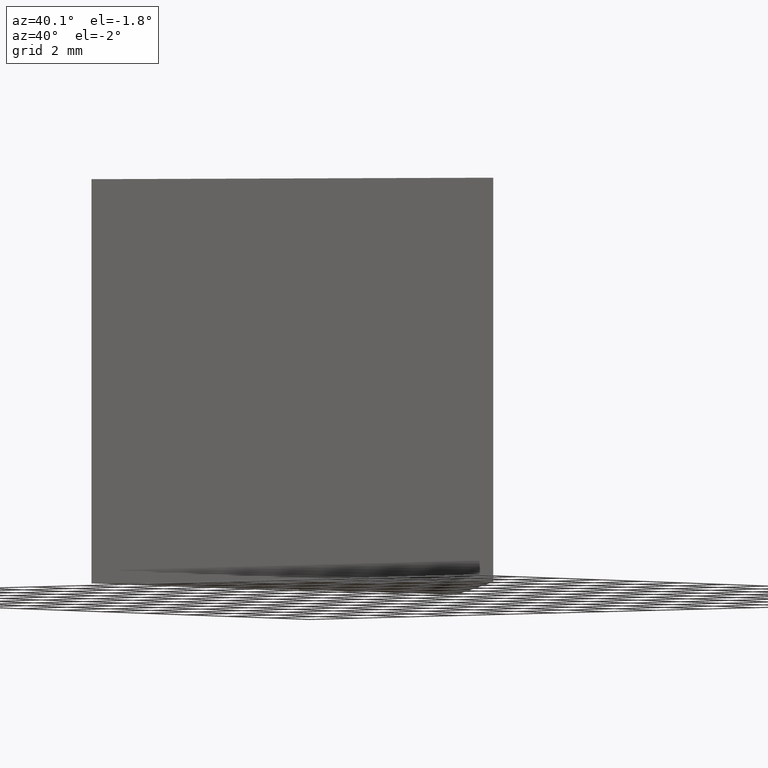
[diagram: clean part render]
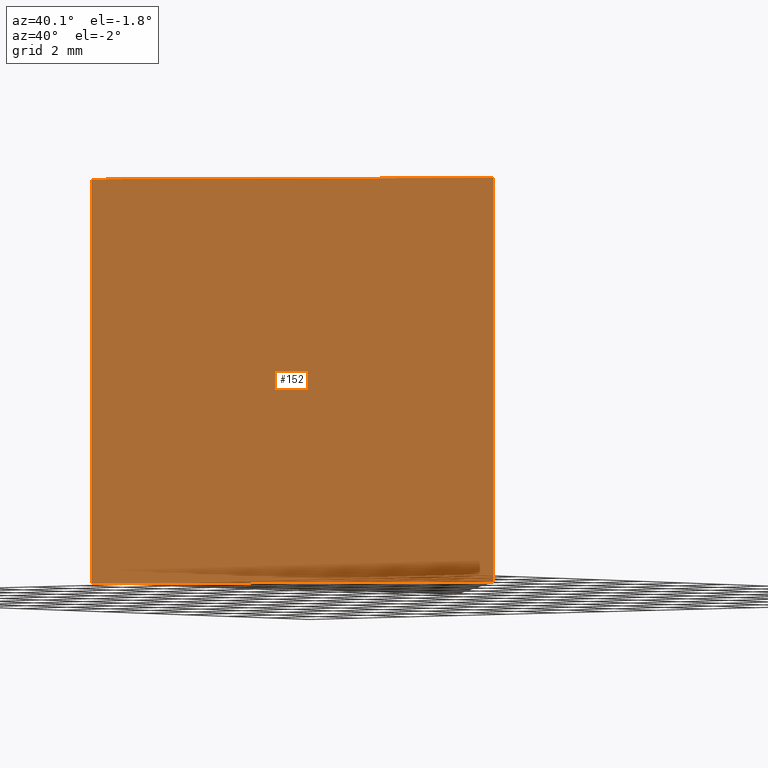
[diagram: same view with one face highlighted and labeled with its STEP entity id]
A machine part, auxiliary view. The second image highlights one B-rep face of the part: STEP entity #152.
In plain terms, the highlighted planar face has unit normal (-0.5514, 0.8342, 0).
Its self-contained STEP definition (entity closure, byte-faithful):
#2 = CARTESIAN_POINT ( 'NONE',  ( 11.11417082101136700, 7.739990180066555100, 0.0000000000000000000 ) ) ;
#6 = ORIENTED_EDGE ( 'NONE', *, *, #133, .F. ) ;
#7 = ORIENTED_EDGE ( 'NONE', *, *, #155, .T. ) ;
#15 = CARTESIAN_POINT ( 'NONE',  ( 11.11417082101136700, 7.739990180066555100, 12.50000000000000000 ) ) ;
#18 = CARTESIAN_POINT ( 'NONE',  ( 11.11417082101136700, 7.739990180066555100, 12.50000000000000000 ) ) ;
#22 = AXIS2_PLACEMENT_3D ( 'NONE', #15, #91, #153 ) ;
#30 = LINE ( 'NONE', #142, #132 ) ;
#35 = VERTEX_POINT ( 'NONE', #120 ) ;
#39 = CARTESIAN_POINT ( 'NONE',  ( 0.6861709744360347000, 0.8474711050240408800, 12.50000000000000000 ) ) ;
#43 = VECTOR ( 'NONE', #54, 1000.000000000000100 ) ;
#45 = CARTESIAN_POINT ( 'NONE',  ( 11.11417082101136700, 7.739990180066555100, 12.50000000000000000 ) ) ;
#46 = VERTEX_POINT ( 'NONE', #66 ) ;
#54 = DIRECTION ( 'NONE',  ( 0.8342399877260263700, 0.5514015260034009800, -0.0000000000000000000 ) ) ;
#62 = ORIENTED_EDGE ( 'NONE', *, *, #96, .T. ) ;
#66 = CARTESIAN_POINT ( 'NONE',  ( 11.11417082101136700, 7.739990180066555100, 0.0000000000000000000 ) ) ;
#71 = FACE_OUTER_BOUND ( 'NONE', #83, .T. ) ;
#73 = DIRECTION ( 'NONE',  ( -0.0000000000000000000, -0.0000000000000000000, -1.000000000000000000 ) ) ;
#77 = VECTOR ( 'NONE', #73, 1000.000000000000000 ) ;
#83 = EDGE_LOOP ( 'NONE', ( #62, #104, #6, #7 ) ) ;
#91 = DIRECTION ( 'NONE',  ( -0.5514015260034010900, 0.8342399877260264800, 0.0000000000000000000 ) ) ;
#92 = LINE ( 'NONE', #45, #164 ) ;
#93 = DIRECTION ( 'NONE',  ( 0.8342399877260263700, 0.5514015260034009800, -0.0000000000000000000 ) ) ;
#96 = EDGE_CURVE ( 'NONE', #137, #46, #105, .T. ) ;
#104 = ORIENTED_EDGE ( 'NONE', *, *, #107, .F. ) ;
#105 = LINE ( 'NONE', #2, #43 ) ;
#107 = EDGE_CURVE ( 'NONE', #35, #46, #146, .T. ) ;
#112 = DIRECTION ( 'NONE',  ( -0.0000000000000000000, -0.0000000000000000000, -1.000000000000000000 ) ) ;
#120 = CARTESIAN_POINT ( 'NONE',  ( 11.11417082101136700, 7.739990180066555100, 12.50000000000000000 ) ) ;
#129 = PLANE ( 'NONE',  #22 ) ;
#132 = VECTOR ( 'NONE', #112, 1000.000000000000000 ) ;
#133 = EDGE_CURVE ( 'NONE', #149, #35, #92, .T. ) ;
#137 = VERTEX_POINT ( 'NONE', #145 ) ;
#142 = CARTESIAN_POINT ( 'NONE',  ( 0.6861709744360347000, 0.8474711050240408800, 12.50000000000000000 ) ) ;
#145 = CARTESIAN_POINT ( 'NONE',  ( 0.6861709744360347000, 0.8474711050240408800, 0.0000000000000000000 ) ) ;
#146 = LINE ( 'NONE', #18, #77 ) ;
#149 = VERTEX_POINT ( 'NONE', #39 ) ;
#152 = ADVANCED_FACE ( 'NONE', ( #71 ), #129, .F. ) ;
#153 = DIRECTION ( 'NONE',  ( -0.8342399877260263700, -0.5514015260034009800, 0.0000000000000000000 ) ) ;
#155 = EDGE_CURVE ( 'NONE', #149, #137, #30, .T. ) ;
#164 = VECTOR ( 'NONE', #93, 1000.000000000000100 ) ;